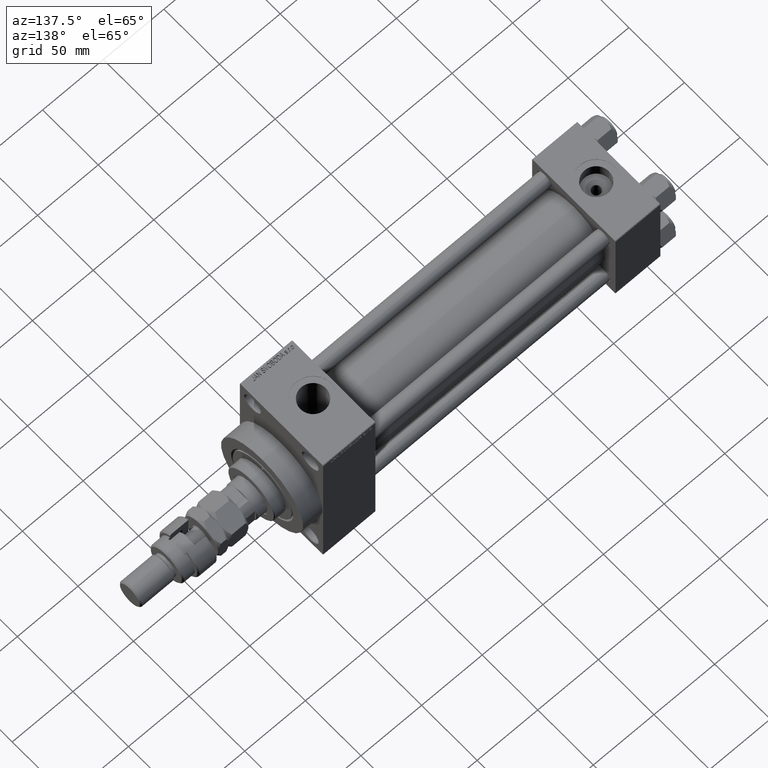
[diagram: clean part render]
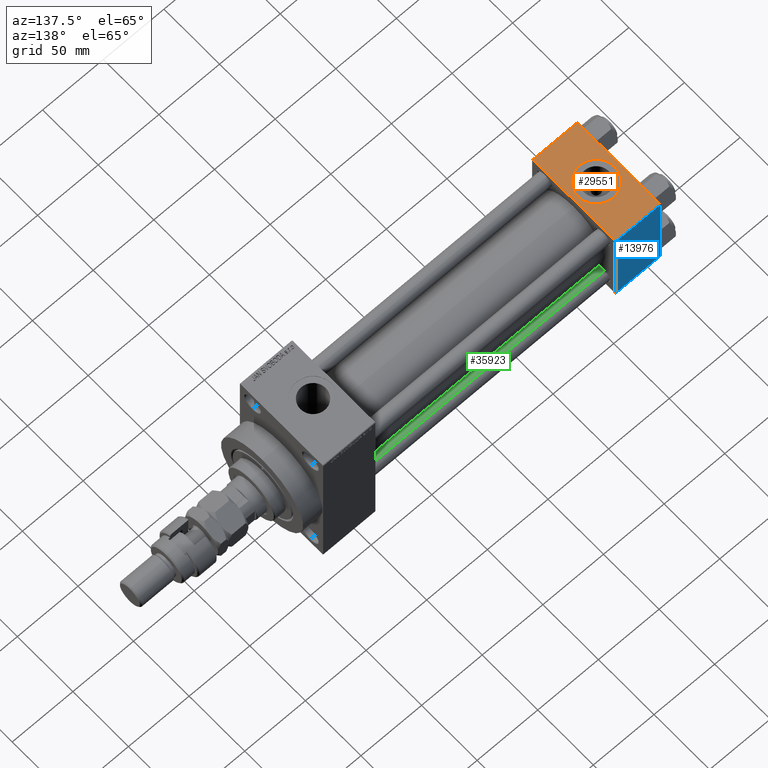
[diagram: same view with three faces highlighted in distinct colors, each labeled with its STEP entity id]
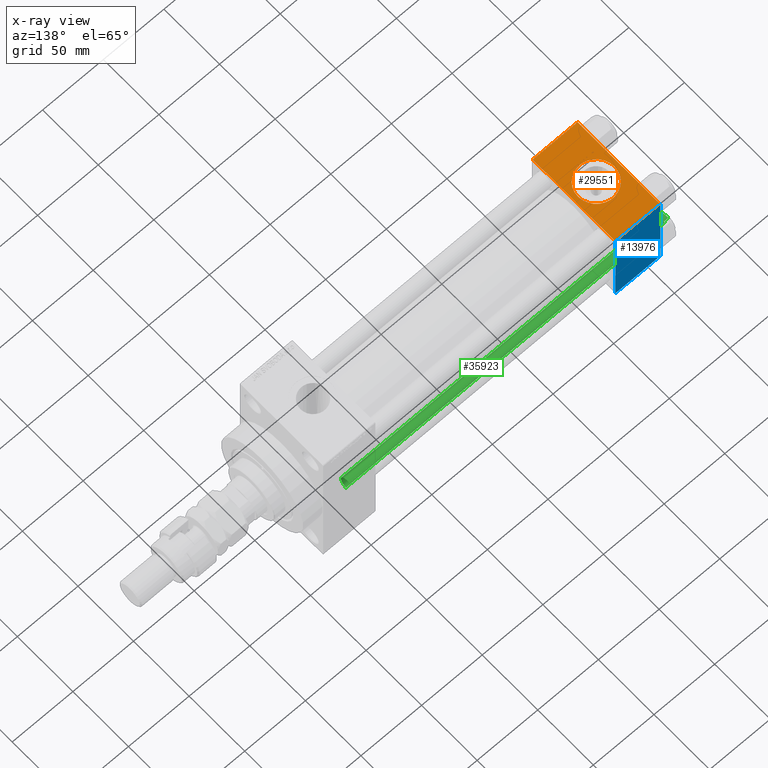
[diagram: x-ray of the same camera — body ghosted, the three highlighted faces saturated]
A machine part, auxiliary view with three faces highlighted in distinct colors.
The next image is the same camera in x-ray (body ghosted, the three faces saturated) — at least one of them is partly hidden behind the body in this view.
Their STEP definitions:

[orange] entity #29551 — the highlighted planar face has unit normal (0, 0, -1).
#16 = LINE ( 'NONE', #26705, #42304 ) ;
#33 = VECTOR ( 'NONE', #42487, 1000.000000000000000 ) ;
#468 = AXIS2_PLACEMENT_3D ( 'NONE', #38970, #14846, #30354 ) ;
#469 = VERTEX_POINT ( 'NONE', #13798 ) ;
#510 = EDGE_CURVE ( 'NONE', #469, #18706, #2890, .T. ) ;
#1449 = LINE ( 'NONE', #16919, #24958 ) ;
#2581 = EDGE_CURVE ( 'NONE', #29512, #30015, #39091, .T. ) ;
#2890 = LINE ( 'NONE', #7190, #33 ) ;
#2963 = ORIENTED_EDGE ( 'NONE', *, *, #2581, .F. ) ;
#3347 = CARTESIAN_POINT ( 'NONE',  ( 0.000000000000000000, 36.99999999999999289, 37.50000000000000000 ) ) ;
#3611 = DIRECTION ( 'NONE',  ( 1.000000000000000000, 0.000000000000000000, 0.000000000000000000 ) ) ;
#4494 = CARTESIAN_POINT ( 'NONE',  ( 18.50000000000000000, -5.204170427930421283E-15, 37.50000000000000000 ) ) ;
#5461 = CIRCLE ( 'NONE', #30608, 15.00000000000000355 ) ;
#7190 = CARTESIAN_POINT ( 'NONE',  ( 37.00000000000000000, -37.00000000000000711, 37.49999999999999289 ) ) ;
#9886 = AXIS2_PLACEMENT_3D ( 'NONE', #26467, #41972, #3611 ) ;
#12705 = CARTESIAN_POINT ( 'NONE',  ( 33.50000000000000000, -5.204170427930421283E-15, 37.50000000000000000 ) ) ;
#13798 = CARTESIAN_POINT ( 'NONE',  ( 0.000000000000000000, -37.00000000000000711, 37.49999999999999289 ) ) ;
#14125 = ORIENTED_EDGE ( 'NONE', *, *, #18109, .F. ) ;
#14846 = DIRECTION ( 'NONE',  ( 0.000000000000000000, 9.251858538542971581E-17, -1.000000000000000000 ) ) ;
#15340 = PLANE ( 'NONE',  #468 ) ;
#15669 = DIRECTION ( 'NONE',  ( 1.000000000000000000, 0.000000000000000000, 0.000000000000000000 ) ) ;
#16919 = CARTESIAN_POINT ( 'NONE',  ( 0.000000000000000000, 37.49999999999999289, 37.50000000000000000 ) ) ;
#17664 = ORIENTED_EDGE ( 'NONE', *, *, #37230, .T. ) ;
#17871 = EDGE_LOOP ( 'NONE', ( #14125, #2963 ) ) ;
#18109 = EDGE_CURVE ( 'NONE', #30015, #29512, #5461, .T. ) ;
#18325 = VERTEX_POINT ( 'NONE', #41994 ) ;
#18705 = EDGE_LOOP ( 'NONE', ( #17664, #24498, #37201, #49116 ) ) ;
#18706 = VERTEX_POINT ( 'NONE', #32104 ) ;
#20988 = DIRECTION ( 'NONE',  ( 0.000000000000000000, -1.000000000000000000, -9.251858538542971581E-17 ) ) ;
#24498 = ORIENTED_EDGE ( 'NONE', *, *, #510, .T. ) ;
#24958 = VECTOR ( 'NONE', #20988, 1000.000000000000000 ) ;
#26467 = CARTESIAN_POINT ( 'NONE',  ( 18.50000000000000000, -5.204170427930421283E-15, 37.50000000000000000 ) ) ;
#26705 = CARTESIAN_POINT ( 'NONE',  ( 37.00000000000000000, 37.49999999999999289, 37.50000000000000000 ) ) ;
#29512 = VERTEX_POINT ( 'NONE', #33409 ) ;
#29551 = ADVANCED_FACE ( 'NONE', ( #45841, #38728 ), #15340, .F. ) ;
#30015 = VERTEX_POINT ( 'NONE', #12705 ) ;
#30354 = DIRECTION ( 'NONE',  ( 0.000000000000000000, 1.000000000000000000, 9.251858538542971581E-17 ) ) ;
#30525 = DIRECTION ( 'NONE',  ( 0.000000000000000000, -1.000000000000000000, -9.251858538542971581E-17 ) ) ;
#30608 = AXIS2_PLACEMENT_3D ( 'NONE', #4494, #39538, #15669 ) ;
#32104 = CARTESIAN_POINT ( 'NONE',  ( 37.00000000000000000, -37.00000000000000711, 37.49999999999999289 ) ) ;
#33409 = CARTESIAN_POINT ( 'NONE',  ( 3.499999999999997780, -3.367200229209391300E-15, 37.50000000000000000 ) ) ;
#34331 = DIRECTION ( 'NONE',  ( -1.000000000000000000, 0.000000000000000000, 0.000000000000000000 ) ) ;
#37201 = ORIENTED_EDGE ( 'NONE', *, *, #45464, .F. ) ;
#37230 = EDGE_CURVE ( 'NONE', #18325, #469, #1449, .T. ) ;
#38059 = VERTEX_POINT ( 'NONE', #49457 ) ;
#38253 = VECTOR ( 'NONE', #34331, 1000.000000000000000 ) ;
#38728 = FACE_OUTER_BOUND ( 'NONE', #18705, .T. ) ;
#38970 = CARTESIAN_POINT ( 'NONE',  ( 37.00000000000000000, 37.49999999999999289, 37.50000000000000000 ) ) ;
#39091 = CIRCLE ( 'NONE', #9886, 15.00000000000000355 ) ;
#39538 = DIRECTION ( 'NONE',  ( 0.000000000000000000, 0.000000000000000000, 1.000000000000000000 ) ) ;
#41972 = DIRECTION ( 'NONE',  ( 0.000000000000000000, 0.000000000000000000, 1.000000000000000000 ) ) ;
#41994 = CARTESIAN_POINT ( 'NONE',  ( 0.000000000000000000, 36.99999999999999289, 37.50000000000000000 ) ) ;
#42304 = VECTOR ( 'NONE', #30525, 1000.000000000000000 ) ;
#42487 = DIRECTION ( 'NONE',  ( 1.000000000000000000, 0.000000000000000000, 0.000000000000000000 ) ) ;
#45459 = EDGE_CURVE ( 'NONE', #38059, #18325, #46756, .T. ) ;
#45464 = EDGE_CURVE ( 'NONE', #38059, #18706, #16, .T. ) ;
#45841 = FACE_BOUND ( 'NONE', #17871, .T. ) ;
#46756 = LINE ( 'NONE', #3347, #38253 ) ;
#49116 = ORIENTED_EDGE ( 'NONE', *, *, #45459, .T. ) ;
#49457 = CARTESIAN_POINT ( 'NONE',  ( 37.00000000000000000, 36.99999999999999289, 37.50000000000000000 ) ) ;

[blue] entity #13976 — the highlighted planar face has unit normal (0, 1, 0).
#3177 = VERTEX_POINT ( 'NONE', #3485 ) ;
#3485 = CARTESIAN_POINT ( 'NONE',  ( 0.000000000000000000, 37.49999999999999289, -36.99999999999998579 ) ) ;
#3515 = CARTESIAN_POINT ( 'NONE',  ( 37.00000000000000000, 37.49999999999999289, 37.50000000000000000 ) ) ;
#6258 = CARTESIAN_POINT ( 'NONE',  ( 37.00000000000000000, 37.49999999999999289, 37.00000000000000000 ) ) ;
#6888 = VECTOR ( 'NONE', #23853, 1000.000000000000000 ) ;
#7034 = VERTEX_POINT ( 'NONE', #20775 ) ;
#8138 = DIRECTION ( 'NONE',  ( -0.000000000000000000, 1.000000000000000000, 0.000000000000000000 ) ) ;
#8294 = ORIENTED_EDGE ( 'NONE', *, *, #42167, .F. ) ;
#11381 = DIRECTION ( 'NONE',  ( 0.000000000000000000, 0.000000000000000000, -1.000000000000000000 ) ) ;
#11458 = DIRECTION ( 'NONE',  ( 0.000000000000000000, -0.000000000000000000, 1.000000000000000000 ) ) ;
#11921 = EDGE_CURVE ( 'NONE', #35565, #47560, #21993, .T. ) ;
#13168 = EDGE_CURVE ( 'NONE', #7034, #3177, #36045, .T. ) ;
#13976 = ADVANCED_FACE ( 'NONE', ( #42931 ), #26704, .T. ) ;
#15107 = CARTESIAN_POINT ( 'NONE',  ( 37.00000000000000000, 37.49999999999999289, 37.00000000000000000 ) ) ;
#18681 = DIRECTION ( 'NONE',  ( 1.000000000000000000, 0.000000000000000000, 0.000000000000000000 ) ) ;
#19020 = EDGE_CURVE ( 'NONE', #47560, #7034, #27126, .T. ) ;
#20775 = CARTESIAN_POINT ( 'NONE',  ( 37.00000000000000000, 37.49999999999999289, -36.99999999999998579 ) ) ;
#21993 = LINE ( 'NONE', #6258, #36879 ) ;
#23314 = DIRECTION ( 'NONE',  ( 0.000000000000000000, 0.000000000000000000, -1.000000000000000000 ) ) ;
#23853 = DIRECTION ( 'NONE',  ( -1.000000000000000000, 0.000000000000000000, 0.000000000000000000 ) ) ;
#26052 = EDGE_LOOP ( 'NONE', ( #49187, #46399, #8294, #35659 ) ) ;
#26388 = LINE ( 'NONE', #34006, #30848 ) ;
#26704 = PLANE ( 'NONE',  #27195 ) ;
#27126 = LINE ( 'NONE', #3515, #36316 ) ;
#27195 = AXIS2_PLACEMENT_3D ( 'NONE', #46257, #8138, #11458 ) ;
#28939 = CARTESIAN_POINT ( 'NONE',  ( 37.00000000000000000, 37.49999999999999289, -36.99999999999998579 ) ) ;
#30848 = VECTOR ( 'NONE', #23314, 1000.000000000000000 ) ;
#34006 = CARTESIAN_POINT ( 'NONE',  ( 0.000000000000000000, 37.49999999999999289, 37.50000000000000000 ) ) ;
#35565 = VERTEX_POINT ( 'NONE', #45232 ) ;
#35659 = ORIENTED_EDGE ( 'NONE', *, *, #11921, .T. ) ;
#36045 = LINE ( 'NONE', #28939, #6888 ) ;
#36316 = VECTOR ( 'NONE', #11381, 1000.000000000000000 ) ;
#36879 = VECTOR ( 'NONE', #18681, 1000.000000000000000 ) ;
#42167 = EDGE_CURVE ( 'NONE', #35565, #3177, #26388, .T. ) ;
#42931 = FACE_OUTER_BOUND ( 'NONE', #26052, .T. ) ;
#45232 = CARTESIAN_POINT ( 'NONE',  ( 0.000000000000000000, 37.49999999999999289, 37.00000000000000000 ) ) ;
#46257 = CARTESIAN_POINT ( 'NONE',  ( 37.00000000000000000, 37.49999999999999289, 37.50000000000000000 ) ) ;
#46399 = ORIENTED_EDGE ( 'NONE', *, *, #13168, .T. ) ;
#47560 = VERTEX_POINT ( 'NONE', #15107 ) ;
#49187 = ORIENTED_EDGE ( 'NONE', *, *, #19020, .T. ) ;

[green] entity #35923 — the highlighted cylindrical surface (edge-blend (fillet) strip) has radius 6 mm, axis along (1, -0, 0).
#903 = ORIENTED_EDGE ( 'NONE', *, *, #15905, .F. ) ;
#1155 = CARTESIAN_POINT ( 'NONE',  ( 6.000000000000000888, 7.347880794884120722E-16, 264.0000000000000000 ) ) ;
#2860 = CARTESIAN_POINT ( 'NONE',  ( -6.000000000000000888, 0.000000000000000000, 264.0000000000000000 ) ) ;
#3414 = ORIENTED_EDGE ( 'NONE', *, *, #7392, .T. ) ;
#4193 = AXIS2_PLACEMENT_3D ( 'NONE', #49637, #41007, #14819 ) ;
#4221 = DIRECTION ( 'NONE',  ( 1.000000000000000000, 0.000000000000000000, 0.000000000000000000 ) ) ;
#4610 = VERTEX_POINT ( 'NONE', #49364 ) ;
#6269 = CARTESIAN_POINT ( 'NONE',  ( -6.000000000000000888, 0.000000000000000000, 0.5000000000000559552 ) ) ;
#6270 = AXIS2_PLACEMENT_3D ( 'NONE', #25100, #44660, #26630 ) ;
#7392 = EDGE_CURVE ( 'NONE', #42417, #4610, #46524, .T. ) ;
#9283 = DIRECTION ( 'NONE',  ( -0.000000000000000000, -0.000000000000000000, -1.000000000000000000 ) ) ;
#14819 = DIRECTION ( 'NONE',  ( 1.000000000000000000, 0.000000000000000000, 0.000000000000000000 ) ) ;
#15399 = DIRECTION ( 'NONE',  ( -0.000000000000000000, -0.000000000000000000, 1.000000000000000000 ) ) ;
#15529 = CIRCLE ( 'NONE', #4193, 6.000000000000000888 ) ;
#15905 = EDGE_CURVE ( 'NONE', #42222, #4610, #27825, .T. ) ;
#21546 = FACE_OUTER_BOUND ( 'NONE', #23337, .T. ) ;
#22185 = AXIS2_PLACEMENT_3D ( 'NONE', #42829, #15399, #4221 ) ;
#23337 = EDGE_LOOP ( 'NONE', ( #903, #47341, #27267, #3414 ) ) ;
#25100 = CARTESIAN_POINT ( 'NONE',  ( 0.000000000000000000, 0.000000000000000000, 264.0000000000000000 ) ) ;
#25241 = VECTOR ( 'NONE', #34085, 1000.000000000000000 ) ;
#26463 = VECTOR ( 'NONE', #9283, 1000.000000000000000 ) ;
#26630 = DIRECTION ( 'NONE',  ( -1.000000000000000000, 0.000000000000000000, 0.000000000000000000 ) ) ;
#27267 = ORIENTED_EDGE ( 'NONE', *, *, #46943, .T. ) ;
#27825 = LINE ( 'NONE', #1155, #26463 ) ;
#34085 = DIRECTION ( 'NONE',  ( -0.000000000000000000, -0.000000000000000000, -1.000000000000000000 ) ) ;
#35923 = ADVANCED_FACE ( 'NONE', ( #21546 ), #48241, .T. ) ;
#36612 = CARTESIAN_POINT ( 'NONE',  ( -6.000000000000000888, 0.000000000000000000, 263.5000000000000568 ) ) ;
#41007 = DIRECTION ( 'NONE',  ( 0.000000000000000000, 0.000000000000000000, -1.000000000000000000 ) ) ;
#42222 = VERTEX_POINT ( 'NONE', #43610 ) ;
#42417 = VERTEX_POINT ( 'NONE', #6269 ) ;
#42829 = CARTESIAN_POINT ( 'NONE',  ( 0.000000000000000000, 0.000000000000000000, 0.5000000000000559552 ) ) ;
#43610 = CARTESIAN_POINT ( 'NONE',  ( 6.000000000000000888, 7.347880794884120722E-16, 263.5000000000000568 ) ) ;
#44660 = DIRECTION ( 'NONE',  ( -0.000000000000000000, -0.000000000000000000, -1.000000000000000000 ) ) ;
#45020 = EDGE_CURVE ( 'NONE', #42222, #49130, #15529, .T. ) ;
#46524 = CIRCLE ( 'NONE', #22185, 6.000000000000000888 ) ;
#46943 = EDGE_CURVE ( 'NONE', #49130, #42417, #48834, .T. ) ;
#47341 = ORIENTED_EDGE ( 'NONE', *, *, #45020, .T. ) ;
#48241 = CYLINDRICAL_SURFACE ( 'NONE', #6270, 6.000000000000000888 ) ;
#48834 = LINE ( 'NONE', #2860, #25241 ) ;
#49130 = VERTEX_POINT ( 'NONE', #36612 ) ;
#49364 = CARTESIAN_POINT ( 'NONE',  ( 6.000000000000000888, 7.347880794884120722E-16, 0.5000000000000559552 ) ) ;
#49637 = CARTESIAN_POINT ( 'NONE',  ( 0.000000000000000000, 0.000000000000000000, 263.5000000000000568 ) ) ;